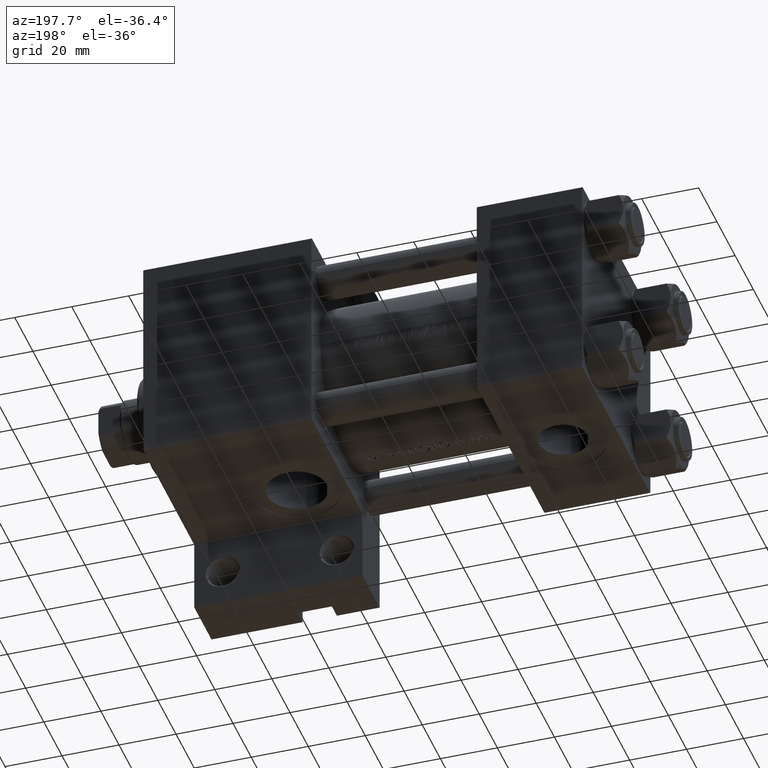
[diagram: clean part render]
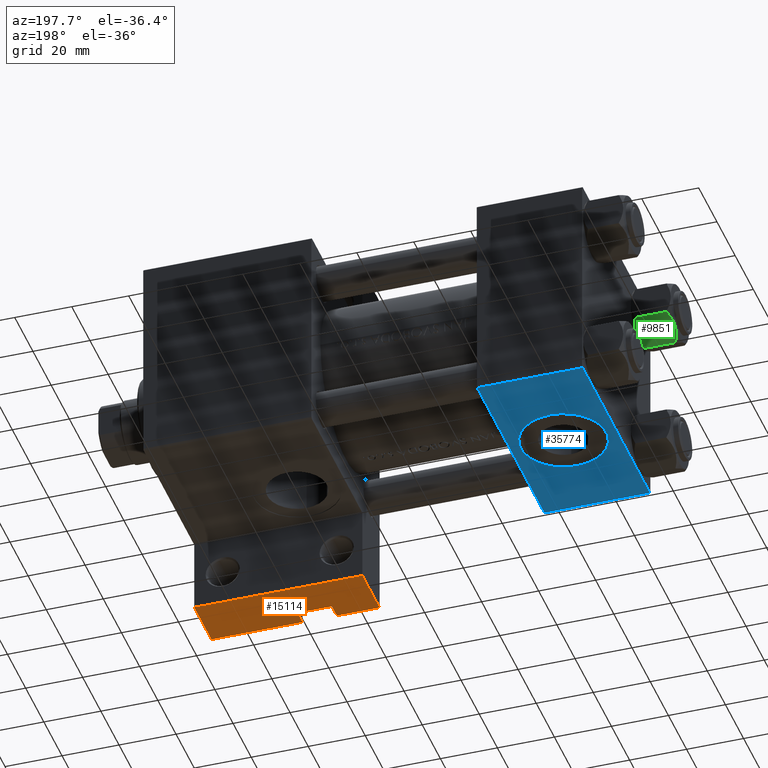
[diagram: same view with three faces highlighted in distinct colors, each labeled with its STEP entity id]
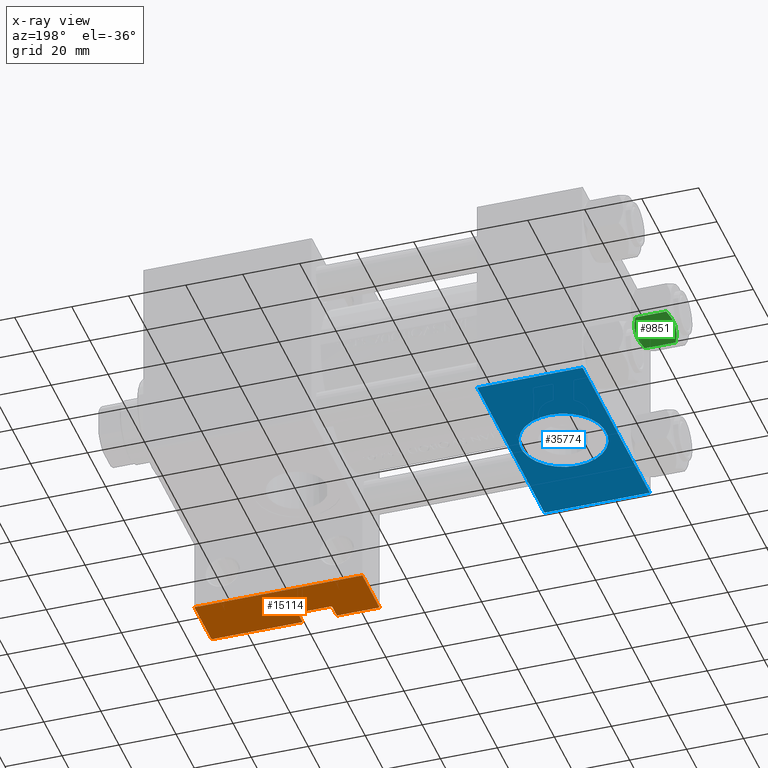
[diagram: x-ray of the same camera — body ghosted, the three highlighted faces saturated]
A machine part, auxiliary view with three faces highlighted in distinct colors.
The next image is the same camera in x-ray (body ghosted, the three faces saturated) — at least one of them is partly hidden behind the body in this view.
Their STEP definitions:

[orange] entity #15114 — the highlighted planar face has unit normal (0, 0, -1).
#1751 = PLANE ( 'NONE',  #15784 ) ;
#2008 = DIRECTION ( 'NONE',  ( -0.000000000000000000, -0.000000000000000000, -1.000000000000000000 ) ) ;
#2586 = LINE ( 'NONE', #17275, #32593 ) ;
#2655 = CARTESIAN_POINT ( 'NONE',  ( 154.0000000000000000, 63.50000000000000000, -18.50000000000000000 ) ) ;
#2968 = ORIENTED_EDGE ( 'NONE', *, *, #4302, .F. ) ;
#3140 = CARTESIAN_POINT ( 'NONE',  ( 95.00000000000000000, 63.50000000000000000, -18.50000000000000000 ) ) ;
#4207 = EDGE_CURVE ( 'NONE', #5651, #8555, #20985, .T. ) ;
#4302 = EDGE_CURVE ( 'NONE', #32440, #44326, #4971, .T. ) ;
#4971 = LINE ( 'NONE', #8824, #44837 ) ;
#5552 = ORIENTED_EDGE ( 'NONE', *, *, #12377, .T. ) ;
#5651 = VERTEX_POINT ( 'NONE', #13296 ) ;
#5700 = LINE ( 'NONE', #20143, #44638 ) ;
#7555 = VECTOR ( 'NONE', #28909, 1000.000000000000000 ) ;
#7571 = EDGE_CURVE ( 'NONE', #12985, #46628, #2586, .T. ) ;
#8006 = VECTOR ( 'NONE', #43631, 1000.000000000000000 ) ;
#8129 = DIRECTION ( 'NONE',  ( 0.000000000000000000, 0.000000000000000000, -1.000000000000000000 ) ) ;
#8555 = VERTEX_POINT ( 'NONE', #2655 ) ;
#8824 = CARTESIAN_POINT ( 'NONE',  ( 122.0000000000000000, 63.50000000000000000, -32.00000000000000000 ) ) ;
#9897 = DIRECTION ( 'NONE',  ( 1.000000000000000000, 0.000000000000000000, 0.000000000000000000 ) ) ;
#9951 = CARTESIAN_POINT ( 'NONE',  ( 110.0000000000000000, 63.50000000000000000, -32.00000000000000000 ) ) ;
#10676 = EDGE_CURVE ( 'NONE', #5651, #12985, #29358, .T. ) ;
#11418 = VERTEX_POINT ( 'NONE', #27953 ) ;
#12377 = EDGE_CURVE ( 'NONE', #8555, #11418, #40964, .T. ) ;
#12588 = DIRECTION ( 'NONE',  ( -0.000000000000000000, 1.000000000000000000, 0.000000000000000000 ) ) ;
#12928 = CARTESIAN_POINT ( 'NONE',  ( 122.0000000000000000, 63.50000000000000000, -32.00000000000000000 ) ) ;
#12985 = VERTEX_POINT ( 'NONE', #27079 ) ;
#13296 = CARTESIAN_POINT ( 'NONE',  ( 95.00000000000000000, 63.50000000000000000, -18.50000000000000000 ) ) ;
#13416 = DIRECTION ( 'NONE',  ( 1.000000000000000000, 0.000000000000000000, 0.000000000000000000 ) ) ;
#14487 = CARTESIAN_POINT ( 'NONE',  ( 154.0000000000000000, 63.50000000000000000, -18.50000000000000000 ) ) ;
#15114 = ADVANCED_FACE ( 'NONE', ( #24144 ), #1751, .T. ) ;
#15332 = CARTESIAN_POINT ( 'NONE',  ( 122.0000000000000000, 63.50000000000000000, -37.50000000000000000 ) ) ;
#15784 = AXIS2_PLACEMENT_3D ( 'NONE', #27754, #12588, #42225 ) ;
#17275 = CARTESIAN_POINT ( 'NONE',  ( 95.00000000000000000, 63.50000000000000000, -37.50000000000000000 ) ) ;
#17372 = LINE ( 'NONE', #39540, #7555 ) ;
#18604 = EDGE_LOOP ( 'NONE', ( #2968, #23317, #45844, #29062, #39454, #38059, #5552, #38690 ) ) ;
#20143 = CARTESIAN_POINT ( 'NONE',  ( 95.00000000000000000, 63.50000000000000000, -37.50000000000000000 ) ) ;
#20985 = LINE ( 'NONE', #3140, #23220 ) ;
#21548 = VERTEX_POINT ( 'NONE', #42339 ) ;
#23220 = VECTOR ( 'NONE', #9897, 1000.000000000000000 ) ;
#23317 = ORIENTED_EDGE ( 'NONE', *, *, #26711, .F. ) ;
#24144 = FACE_OUTER_BOUND ( 'NONE', #18604, .T. ) ;
#26711 = EDGE_CURVE ( 'NONE', #21548, #32440, #17372, .T. ) ;
#27079 = CARTESIAN_POINT ( 'NONE',  ( 95.00000000000000000, 63.50000000000000000, -37.50000000000000000 ) ) ;
#27754 = CARTESIAN_POINT ( 'NONE',  ( 95.00000000000000000, 63.50000000000000000, -18.50000000000000000 ) ) ;
#27953 = CARTESIAN_POINT ( 'NONE',  ( 154.0000000000000000, 63.50000000000000000, -37.50000000000000000 ) ) ;
#28909 = DIRECTION ( 'NONE',  ( 1.000000000000000000, 0.000000000000000000, 0.000000000000000000 ) ) ;
#29062 = ORIENTED_EDGE ( 'NONE', *, *, #7571, .F. ) ;
#29358 = LINE ( 'NONE', #44300, #34086 ) ;
#30734 = DIRECTION ( 'NONE',  ( -0.000000000000000000, -0.000000000000000000, -1.000000000000000000 ) ) ;
#32440 = VERTEX_POINT ( 'NONE', #12928 ) ;
#32593 = VECTOR ( 'NONE', #39909, 1000.000000000000000 ) ;
#34086 = VECTOR ( 'NONE', #8129, 1000.000000000000000 ) ;
#34797 = CARTESIAN_POINT ( 'NONE',  ( 110.0000000000000000, 63.50000000000000000, -37.50000000000000000 ) ) ;
#35530 = VECTOR ( 'NONE', #2008, 1000.000000000000000 ) ;
#35876 = EDGE_CURVE ( 'NONE', #44326, #11418, #5700, .T. ) ;
#38059 = ORIENTED_EDGE ( 'NONE', *, *, #4207, .T. ) ;
#38690 = ORIENTED_EDGE ( 'NONE', *, *, #35876, .F. ) ;
#38811 = EDGE_CURVE ( 'NONE', #21548, #46628, #46337, .T. ) ;
#39454 = ORIENTED_EDGE ( 'NONE', *, *, #10676, .F. ) ;
#39540 = CARTESIAN_POINT ( 'NONE',  ( 110.0000000000000000, 63.50000000000000000, -32.00000000000000000 ) ) ;
#39909 = DIRECTION ( 'NONE',  ( 1.000000000000000000, 0.000000000000000000, 0.000000000000000000 ) ) ;
#40964 = LINE ( 'NONE', #14487, #8006 ) ;
#42225 = DIRECTION ( 'NONE',  ( 0.000000000000000000, -0.000000000000000000, 1.000000000000000000 ) ) ;
#42339 = CARTESIAN_POINT ( 'NONE',  ( 110.0000000000000000, 63.50000000000000000, -32.00000000000000000 ) ) ;
#43631 = DIRECTION ( 'NONE',  ( 0.000000000000000000, 0.000000000000000000, -1.000000000000000000 ) ) ;
#44300 = CARTESIAN_POINT ( 'NONE',  ( 95.00000000000000000, 63.50000000000000000, -18.50000000000000000 ) ) ;
#44326 = VERTEX_POINT ( 'NONE', #15332 ) ;
#44638 = VECTOR ( 'NONE', #13416, 1000.000000000000000 ) ;
#44837 = VECTOR ( 'NONE', #30734, 1000.000000000000000 ) ;
#45844 = ORIENTED_EDGE ( 'NONE', *, *, #38811, .T. ) ;
#46337 = LINE ( 'NONE', #9951, #35530 ) ;
#46628 = VERTEX_POINT ( 'NONE', #34797 ) ;

[blue] entity #35774 — the highlighted planar face has unit normal (0, 0, -1).
#75 = LINE ( 'NONE', #10429, #18621 ) ;
#207 = CARTESIAN_POINT ( 'NONE',  ( 37.00000000000000000, 37.49999999999999289, -36.99999999999998579 ) ) ;
#1374 = CARTESIAN_POINT ( 'NONE',  ( 37.00000000000000000, 37.49999999999999289, 37.50000000000000000 ) ) ;
#2385 = VERTEX_POINT ( 'NONE', #46807 ) ;
#2405 = DIRECTION ( 'NONE',  ( 1.000000000000000000, 0.000000000000000000, 0.000000000000000000 ) ) ;
#2661 = CARTESIAN_POINT ( 'NONE',  ( 18.50000000000000355, 37.49999999999999289, -15.00000000000000178 ) ) ;
#2835 = CARTESIAN_POINT ( 'NONE',  ( 0.000000000000000000, 37.49999999999999289, 37.00000000000000000 ) ) ;
#3355 = ORIENTED_EDGE ( 'NONE', *, *, #28455, .F. ) ;
#3826 = EDGE_CURVE ( 'NONE', #6123, #9372, #75, .T. ) ;
#6123 = VERTEX_POINT ( 'NONE', #44759 ) ;
#6516 = ORIENTED_EDGE ( 'NONE', *, *, #40915, .T. ) ;
#6727 = LINE ( 'NONE', #20710, #33670 ) ;
#6954 = DIRECTION ( 'NONE',  ( 0.000000000000000000, 0.000000000000000000, 1.000000000000000000 ) ) ;
#8109 = PLANE ( 'NONE',  #26186 ) ;
#8113 = ORIENTED_EDGE ( 'NONE', *, *, #17912, .F. ) ;
#9035 = ORIENTED_EDGE ( 'NONE', *, *, #3826, .T. ) ;
#9372 = VERTEX_POINT ( 'NONE', #207 ) ;
#9606 = CARTESIAN_POINT ( 'NONE',  ( 18.50000000000000000, 37.49999999999999289, 0.000000000000000000 ) ) ;
#10429 = CARTESIAN_POINT ( 'NONE',  ( 37.00000000000000000, 37.49999999999999289, 37.50000000000000000 ) ) ;
#11826 = VERTEX_POINT ( 'NONE', #2835 ) ;
#12825 = ORIENTED_EDGE ( 'NONE', *, *, #21360, .T. ) ;
#15634 = VERTEX_POINT ( 'NONE', #28886 ) ;
#16059 = DIRECTION ( 'NONE',  ( 0.000000000000000000, -0.000000000000000000, 1.000000000000000000 ) ) ;
#16439 = CARTESIAN_POINT ( 'NONE',  ( 0.000000000000000000, 37.49999999999999289, 37.50000000000000000 ) ) ;
#17319 = DIRECTION ( 'NONE',  ( 0.000000000000000000, 1.000000000000000000, 0.000000000000000000 ) ) ;
#17571 = CARTESIAN_POINT ( 'NONE',  ( 18.50000000000000000, 37.49999999999999289, 0.000000000000000000 ) ) ;
#17912 = EDGE_CURVE ( 'NONE', #11826, #15634, #24141, .T. ) ;
#18621 = VECTOR ( 'NONE', #40055, 1000.000000000000000 ) ;
#20505 = CIRCLE ( 'NONE', #29825, 15.00000000000000178 ) ;
#20710 = CARTESIAN_POINT ( 'NONE',  ( 37.00000000000000000, 37.49999999999999289, 37.00000000000000000 ) ) ;
#21306 = EDGE_CURVE ( 'NONE', #22210, #2385, #20505, .T. ) ;
#21360 = EDGE_CURVE ( 'NONE', #11826, #6123, #6727, .T. ) ;
#22210 = VERTEX_POINT ( 'NONE', #2661 ) ;
#23936 = LINE ( 'NONE', #35284, #35498 ) ;
#24141 = LINE ( 'NONE', #16439, #43593 ) ;
#24521 = ORIENTED_EDGE ( 'NONE', *, *, #21306, .F. ) ;
#26186 = AXIS2_PLACEMENT_3D ( 'NONE', #1374, #41844, #16059 ) ;
#27126 = FACE_OUTER_BOUND ( 'NONE', #32757, .T. ) ;
#28455 = EDGE_CURVE ( 'NONE', #2385, #22210, #44439, .T. ) ;
#28886 = CARTESIAN_POINT ( 'NONE',  ( 0.000000000000000000, 37.49999999999999289, -36.99999999999998579 ) ) ;
#29825 = AXIS2_PLACEMENT_3D ( 'NONE', #17571, #32259, #6954 ) ;
#32259 = DIRECTION ( 'NONE',  ( 0.000000000000000000, 1.000000000000000000, 0.000000000000000000 ) ) ;
#32757 = EDGE_LOOP ( 'NONE', ( #9035, #6516, #8113, #12825 ) ) ;
#33656 = FACE_BOUND ( 'NONE', #33810, .T. ) ;
#33670 = VECTOR ( 'NONE', #2405, 1000.000000000000000 ) ;
#33810 = EDGE_LOOP ( 'NONE', ( #3355, #24521 ) ) ;
#35284 = CARTESIAN_POINT ( 'NONE',  ( 37.00000000000000000, 37.49999999999999289, -36.99999999999998579 ) ) ;
#35498 = VECTOR ( 'NONE', #46596, 1000.000000000000000 ) ;
#35774 = ADVANCED_FACE ( 'NONE', ( #33656, #27126 ), #8109, .T. ) ;
#38858 = DIRECTION ( 'NONE',  ( 0.000000000000000000, 0.000000000000000000, -1.000000000000000000 ) ) ;
#39834 = AXIS2_PLACEMENT_3D ( 'NONE', #9606, #17319, #45743 ) ;
#40055 = DIRECTION ( 'NONE',  ( 0.000000000000000000, 0.000000000000000000, -1.000000000000000000 ) ) ;
#40915 = EDGE_CURVE ( 'NONE', #9372, #15634, #23936, .T. ) ;
#41844 = DIRECTION ( 'NONE',  ( -0.000000000000000000, 1.000000000000000000, 0.000000000000000000 ) ) ;
#43593 = VECTOR ( 'NONE', #38858, 1000.000000000000000 ) ;
#44439 = CIRCLE ( 'NONE', #39834, 15.00000000000000178 ) ;
#44759 = CARTESIAN_POINT ( 'NONE',  ( 37.00000000000000000, 37.49999999999999289, 37.00000000000000000 ) ) ;
#45743 = DIRECTION ( 'NONE',  ( 0.000000000000000000, 0.000000000000000000, 1.000000000000000000 ) ) ;
#46596 = DIRECTION ( 'NONE',  ( -1.000000000000000000, 0.000000000000000000, 0.000000000000000000 ) ) ;
#46807 = CARTESIAN_POINT ( 'NONE',  ( 18.50000000000000000, 37.49999999999999289, 15.00000000000000178 ) ) ;

[green] entity #9851 — the highlighted planar face has unit normal (0, -0.5, 0.866).
#576 = EDGE_CURVE ( 'NONE', #36548, #38086, #19420, .T. ) ;
#1517 = VERTEX_POINT ( 'NONE', #15725 ) ;
#1594 = CARTESIAN_POINT ( 'NONE',  ( 11.62000000000000099, -1.689012838886770227E-15, -12.44321519197518633 ) ) ;
#3460 = CARTESIAN_POINT ( 'NONE',  ( 6.265545725125285514, -9.274186850887382150, -1.101239082899530430 ) ) ;
#4163 = CARTESIAN_POINT ( 'NONE',  ( 6.731401448974991375, -8.467301068182914392, -0.7141438259524641730 ) ) ;
#6752 = ORIENTED_EDGE ( 'NONE', *, *, #576, .T. ) ;
#6828 = CARTESIAN_POINT ( 'NONE',  ( 5.810000000000000497, -10.06321519197517667, -1.556784808024811895 ) ) ;
#7541 = CARTESIAN_POINT ( 'NONE',  ( 7.455303369716807182, -7.213466161761383333, -0.3002673809867365540 ) ) ;
#8100 = EDGE_CURVE ( 'NONE', #32795, #1517, #42703, .T. ) ;
#8161 = CARTESIAN_POINT ( 'NONE',  ( 6.733375043383495573, -8.463882702393842550, -13.28854452935654962 ) ) ;
#9753 = CARTESIAN_POINT ( 'NONE',  ( 11.16498164529022574, -0.7881149087337312453, -1.101766453314952487 ) ) ;
#9851 = ADVANCED_FACE ( 'NONE', ( #37946 ), #29991, .F. ) ;
#11686 = DIRECTION ( 'NONE',  ( -0.8660254037844385966, 0.5000000000000002220, 0.000000000000000000 ) ) ;
#11782 = ORIENTED_EDGE ( 'NONE', *, *, #8100, .F. ) ;
#12357 = VECTOR ( 'NONE', #16044, 1000.000000000000000 ) ;
#12919 = B_SPLINE_CURVE_WITH_KNOTS ( 'NONE', 3,
 ( #17232, #20837, #17697, #13611, #9753, #20349 ),
 .UNSPECIFIED., .F., .F.,
 ( 4, 2, 4 ),
 ( 0.006022845781655586372, 0.009013049135303633289, 0.01200325248895168020 ),
 .UNSPECIFIED. ) ;
#13034 = CARTESIAN_POINT ( 'NONE',  ( 9.729165168613651105, -3.275021996682085046, -13.80960203119265906 ) ) ;
#13611 = CARTESIAN_POINT ( 'NONE',  ( 10.69662495661650503, -1.599332489581334560, -0.7114554706434483844 ) ) ;
#13637 = DIRECTION ( 'NONE',  ( -0.000000000000000000, -0.000000000000000000, 1.000000000000000000 ) ) ;
#14095 = AXIS2_PLACEMENT_3D ( 'NONE', #44707, #11686, #18685 ) ;
#15253 = CARTESIAN_POINT ( 'NONE',  ( 8.715000000000003411, -5.031607595987592774, 0.000000000000000000 ) ) ;
#15637 = CARTESIAN_POINT ( 'NONE',  ( 7.713000053756305263, -6.767122412062954062, -13.84547602999601956 ) ) ;
#15725 = CARTESIAN_POINT ( 'NONE',  ( 8.715000000000003411, -5.031607595987592774, 0.000000000000000000 ) ) ;
#16044 = DIRECTION ( 'NONE',  ( -0.000000000000000000, -0.000000000000000000, 1.000000000000000000 ) ) ;
#17232 = CARTESIAN_POINT ( 'NONE',  ( 8.715000000000003411, -5.031607595987592774, 0.000000000000000000 ) ) ;
#17367 = CARTESIAN_POINT ( 'NONE',  ( 9.974696630283190757, -2.849749030213793777, -13.69973261901325934 ) ) ;
#17697 = CARTESIAN_POINT ( 'NONE',  ( 9.716999946243698005, -3.296092779912227932, -0.1545239700039822972 ) ) ;
#18541 = EDGE_CURVE ( 'NONE', #1517, #38086, #12919, .T. ) ;
#18685 = DIRECTION ( 'NONE',  ( -0.5000000000000001110, -0.8660254037844384856, 0.000000000000000000 ) ) ;
#18860 = CARTESIAN_POINT ( 'NONE',  ( 8.202333004087897450, -5.919572880271052995, -0.03994118060690592109 ) ) ;
#19086 = VECTOR ( 'NONE', #13637, 1000.000000000000000 ) ;
#19420 = LINE ( 'NONE', #34115, #12357 ) ;
#19600 = EDGE_CURVE ( 'NONE', #36548, #36427, #44997, .T. ) ;
#20349 = CARTESIAN_POINT ( 'NONE',  ( 11.62000000000000099, -1.924525737834042474E-15, -1.556784808024813893 ) ) ;
#20740 = EDGE_LOOP ( 'NONE', ( #37609, #6752, #37466, #11782, #31872, #34881 ) ) ;
#20837 = CARTESIAN_POINT ( 'NONE',  ( 9.220295946303432189, -4.156409344131454020, 3.521962994683380021E-15 ) ) ;
#20978 = CARTESIAN_POINT ( 'NONE',  ( 8.969430103550381617, -4.590921729663316242, -14.00000000000000178 ) ) ;
#22867 = CARTESIAN_POINT ( 'NONE',  ( 6.265018354709780191, -9.275100283241448196, -12.89823354668505395 ) ) ;
#26116 = EDGE_CURVE ( 'NONE', #44339, #32795, #46638, .T. ) ;
#27718 = CARTESIAN_POINT ( 'NONE',  ( 9.227666995912100489, -4.143642311704125447, -13.96005881939309212 ) ) ;
#29991 = PLANE ( 'NONE',  #14095 ) ;
#31341 = CARTESIAN_POINT ( 'NONE',  ( 11.62000000000000099, -1.689012838886770227E-15, -12.44321519197518633 ) ) ;
#31784 = B_SPLINE_CURVE_WITH_KNOTS ( 'NONE', 3,
 ( #41188, #34183, #15637, #8161, #22867, #40952 ),
 .UNSPECIFIED., .F., .F.,
 ( 4, 2, 4 ),
 ( 0.006022845781655588975, 0.009013049135303631554, 0.01200325248895167674 ),
 .UNSPECIFIED. ) ;
#31872 = ORIENTED_EDGE ( 'NONE', *, *, #26116, .F. ) ;
#31940 = CARTESIAN_POINT ( 'NONE',  ( 5.810000000000000497, -10.06321519197517667, -14.00000000000000000 ) ) ;
#32285 = CARTESIAN_POINT ( 'NONE',  ( 8.715000000000003411, -5.031607595987592774, -14.00000000000000000 ) ) ;
#32795 = VERTEX_POINT ( 'NONE', #6828 ) ;
#33463 = CARTESIAN_POINT ( 'NONE',  ( 11.62000000000000099, -1.924525737834042474E-15, -1.556784808024813893 ) ) ;
#34115 = CARTESIAN_POINT ( 'NONE',  ( 11.62000000000000099, -1.813166800014576593E-15, -14.00000000000000000 ) ) ;
#34183 = CARTESIAN_POINT ( 'NONE',  ( 8.209704053696569304, -5.906805847843727086, -14.00000000000000178 ) ) ;
#34881 = ORIENTED_EDGE ( 'NONE', *, *, #40438, .F. ) ;
#36427 = VERTEX_POINT ( 'NONE', #46239 ) ;
#36548 = VERTEX_POINT ( 'NONE', #1594 ) ;
#36949 = CARTESIAN_POINT ( 'NONE',  ( 8.460569896449618099, -5.472293462311865753, 3.427848222766236415E-15 ) ) ;
#37466 = ORIENTED_EDGE ( 'NONE', *, *, #18541, .F. ) ;
#37609 = ORIENTED_EDGE ( 'NONE', *, *, #19600, .F. ) ;
#37946 = FACE_OUTER_BOUND ( 'NONE', #20740, .T. ) ;
#38086 = VERTEX_POINT ( 'NONE', #33463 ) ;
#40079 = CARTESIAN_POINT ( 'NONE',  ( 5.810000000000000497, -10.06321519197517667, -1.556784808024811895 ) ) ;
#40438 = EDGE_CURVE ( 'NONE', #36427, #44339, #31784, .T. ) ;
#40952 = CARTESIAN_POINT ( 'NONE',  ( 5.810000000000000497, -10.06321519197517667, -12.44321519197518811 ) ) ;
#41115 = CARTESIAN_POINT ( 'NONE',  ( 5.810000000000000497, -10.06321519197517667, -12.44321519197518811 ) ) ;
#41188 = CARTESIAN_POINT ( 'NONE',  ( 8.715000000000003411, -5.031607595987592774, -14.00000000000000000 ) ) ;
#42425 = CARTESIAN_POINT ( 'NONE',  ( 10.69859855102500923, -1.595914123792265160, -13.28585617404753627 ) ) ;
#42703 = B_SPLINE_CURVE_WITH_KNOTS ( 'NONE', 3,
 ( #40079, #3460, #4163, #7541, #43931, #18860, #36949, #15253 ),
 .UNSPECIFIED., .F., .F.,
 ( 4, 2, 2, 4 ),
 ( 2.544312114902182352E-07, 0.003011550106433539056, 0.004517197944044561847, 0.006022845781655586372 ),
 .UNSPECIFIED. ) ;
#43931 = CARTESIAN_POINT ( 'NONE',  ( 7.700834831386344170, -6.788193195293096061, -0.1903979688073396681 ) ) ;
#44339 = VERTEX_POINT ( 'NONE', #41115 ) ;
#44707 = CARTESIAN_POINT ( 'NONE',  ( 11.62000000000000099, -1.813166800014576593E-15, -14.00000000000000000 ) ) ;
#44997 = B_SPLINE_CURVE_WITH_KNOTS ( 'NONE', 3,
 ( #31341, #46038, #42425, #17367, #13034, #27718, #20978, #32285 ),
 .UNSPECIFIED., .F., .F.,
 ( 4, 2, 2, 4 ),
 ( 2.544312114904007178E-07, 0.003011550106433541225, 0.004517197944044565316, 0.006022845781655588975 ),
 .UNSPECIFIED. ) ;
#46038 = CARTESIAN_POINT ( 'NONE',  ( 11.16445427487472131, -0.7890283410877986237, -12.89876091710047135 ) ) ;
#46239 = CARTESIAN_POINT ( 'NONE',  ( 8.715000000000003411, -5.031607595987592774, -14.00000000000000000 ) ) ;
#46638 = LINE ( 'NONE', #31940, #19086 ) ;